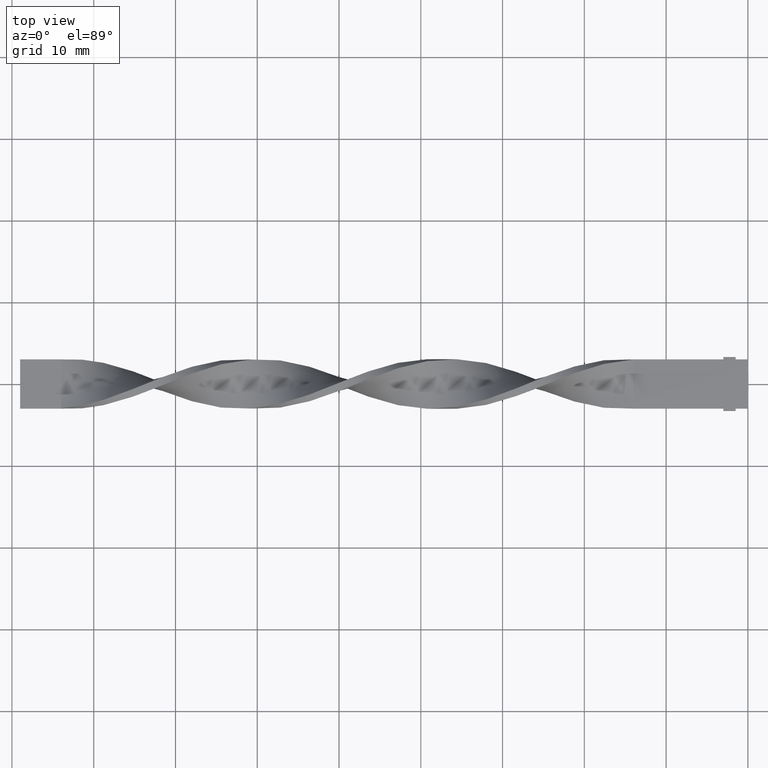
[diagram: clean part render]
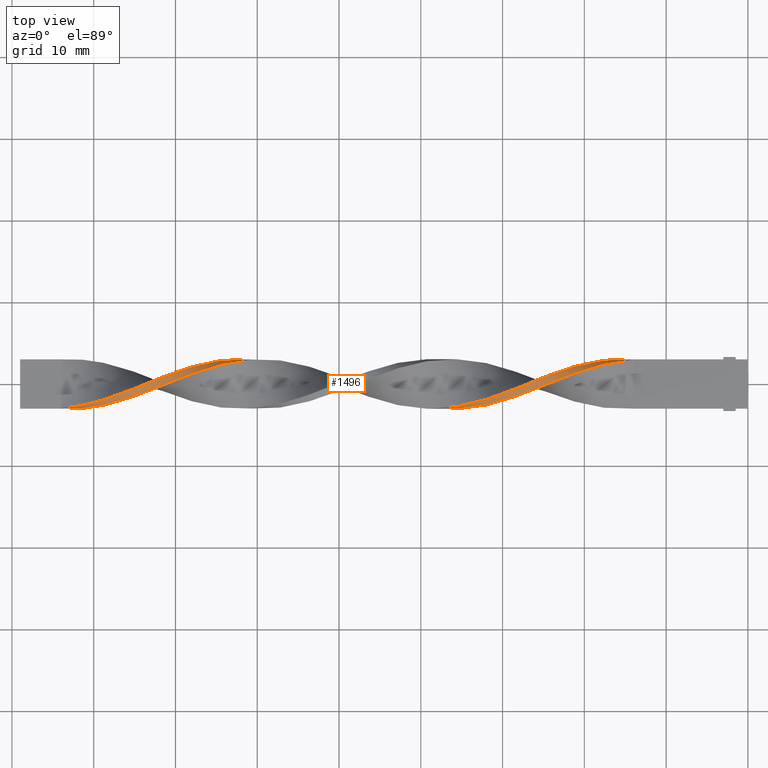
[diagram: same view with one face highlighted and labeled with its STEP entity id]
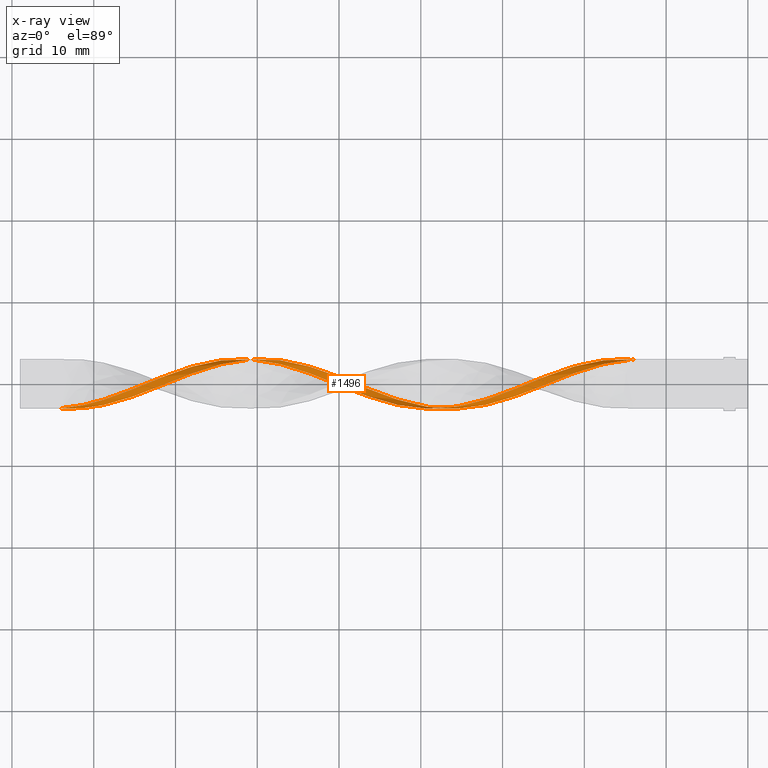
[diagram: x-ray of the same camera — body ghosted, the highlighted face saturated]
A machine part, top view. The second image highlights one B-rep face of the part: STEP entity #1496.
The next image is the same camera in x-ray: the body ghosted, the highlighted face saturated — about 0% of this face is hidden behind the body in this view.
In plain terms, the highlighted face is a freeform B-spline surface patch.
Its self-contained STEP definition (entity closure, byte-faithful):
#8 = CARTESIAN_POINT ( 'NONE',  ( -52.58974358974358410, 0.9584295337030710460, -2.909946448908425243 ) ) ;
#16 = B_SPLINE_CURVE_WITH_KNOTS ( 'NONE', 3,
 ( #1099, #101, #473, #1482 ),
 .UNSPECIFIED., .F., .F.,
 ( 4, 4 ),
 ( 0.000000000000000000, 1.000000000000000000 ),
 .UNSPECIFIED. ) ;
#21 = CARTESIAN_POINT ( 'NONE',  ( -70.53846153846153300, 1.212256617197150943, 2.813682533735952340 ) ) ;
#32 = CARTESIAN_POINT ( 'NONE',  ( -64.25641025641024839, 2.424006490937744562, 1.836897528957910142 ) ) ;
#34 = CARTESIAN_POINT ( 'NONE',  ( -14.89743589743589602, 2.939289008388868751, 0.8642659496667816077 ) ) ;
#37 = ORIENTED_EDGE ( 'NONE', *, *, #1327, .T. ) ;
#43 = CARTESIAN_POINT ( 'NONE',  ( -36.43589743589743790, -3.060710991611129472, -0.1357340503332171711 ) ) ;
#48 = CARTESIAN_POINT ( 'NONE',  ( -49.89743589743589069, -0.1347443962830601472, -3.038394962421822498 ) ) ;
#50 = CARTESIAN_POINT ( 'NONE',  ( -76.82051282051281760, -2.115686173140294724, 2.184919224315390540 ) ) ;
#52 = CARTESIAN_POINT ( 'NONE',  ( -23.87179487179487580, 0.2341835458667257397, 3.054755894246597769 ) ) ;
#56 = CARTESIAN_POINT ( 'NONE',  ( -69.64102564102564941, 1.531322782470314392, 2.627746284534975718 ) ) ;
#59 = CARTESIAN_POINT ( 'NONE',  ( -65.15384615384614619, 2.200966749995605376, 2.131225204431203224 ) ) ;
#64 = CARTESIAN_POINT ( 'NONE',  ( -34.64102564102564230, -2.647046231879883305, 1.542569853484617726 ) ) ;
#66 = CARTESIAN_POINT ( 'NONE',  ( -67.84615384615385381, 2.115686173140295168, 2.184919224315390540 ) ) ;
#70 = CARTESIAN_POINT ( 'NONE',  ( -49.00000000000000000, 0.5036723384328409825, -3.022034030597047671 ) ) ;
#73 = CARTESIAN_POINT ( 'NONE',  ( -37.33333333333332860, -2.999999999999999112, 0.5000000000000003331 ) ) ;
#74 = CARTESIAN_POINT ( 'NONE',  ( -30.15384615384615330, -2.115686173140294724, 2.184919224315390540 ) ) ;
#80 = CARTESIAN_POINT ( 'NONE',  ( -75.92307692307691980, -1.850388947743477397, 2.441810035334000428 ) ) ;
#83 = FACE_OUTER_BOUND ( 'NONE', #377, .T. ) ;
#85 = CARTESIAN_POINT ( 'NONE',  ( -48.10256410256410220, -0.8579644778149976281, -2.917858282166499340 ) ) ;
#88 = CARTESIAN_POINT ( 'NONE',  ( -80.41025641025640880, -2.888729662981512902, 0.9514415033047007864 ) ) ;
#95 = CARTESIAN_POINT ( 'NONE',  ( -34.64102564102564230, -2.647046231879883305, 1.542569853484617504 ) ) ;
#100 = CARTESIAN_POINT ( 'NONE',  ( -39.12820512820512420, -3.032483284421934044, -0.2324760841496460451 ) ) ;
#101 = CARTESIAN_POINT ( 'NONE',  ( -84.00000000000000000, -2.999999999999999112, -0.1666666666666663521 ) ) ;
#114 = CARTESIAN_POINT ( 'NONE',  ( -34.64102564102564230, -3.004255577232739061, 0.6006862186325132580 ) ) ;
#125 = CARTESIAN_POINT ( 'NONE',  ( -75.02564102564102200, -0.5963065397848987814, 2.982351171577511728 ) ) ;
#132 = CARTESIAN_POINT ( 'NONE',  ( -19.38461538461538325, 2.577093573633700174, 1.615112600636833928 ) ) ;
#140 = CARTESIAN_POINT ( 'NONE',  ( -75.92307692307693401, -1.850388947743477175, 2.441810035334000428 ) ) ;
#161 = CARTESIAN_POINT ( 'NONE',  ( -64.25641025641024839, 2.888729662981512902, 0.9514415033047003423 ) ) ;
#164 = CARTESIAN_POINT ( 'NONE',  ( -63.35897435897435770, 2.647046231879884193, 1.542569853484616615 ) ) ;
#165 = CARTESIAN_POINT ( 'NONE',  ( -20.28205128205128460, 1.626975080790205030, 2.596021493184667683 ) ) ;
#171 = CARTESIAN_POINT ( 'NONE',  ( -47.20512820512820440, -1.212256617197150721, -2.813682533735952340 ) ) ;
#172 = CARTESIAN_POINT ( 'NONE',  ( -52.58974358974359120, 1.850388947743476065, -2.441810035334000872 ) ) ;
#175 = VERTEX_POINT ( 'NONE', #1022 ) ;
#176 = CARTESIAN_POINT ( 'NONE',  ( -51.69230769230769340, 0.5963065397848990035, -2.982351171577511728 ) ) ;
#178 = CARTESIAN_POINT ( 'NONE',  ( -58.87179487179486870, 3.032483284421933600, -0.2324760841496498753 ) ) ;
#183 = CARTESIAN_POINT ( 'NONE',  ( -60.66666666666666430, 2.999999999999999112, -0.5000000000000000000 ) ) ;
#187 = CARTESIAN_POINT ( 'NONE',  ( -47.20512820512820440, -0.2341835458667255176, -3.054755894246597769 ) ) ;
#190 = CARTESIAN_POINT ( 'NONE',  ( -14.89743589743589602, 2.939289008388868751, 0.8642659496667817187 ) ) ;
#193 = CARTESIAN_POINT ( 'NONE',  ( -76.82051282051281760, -1.292702307246638371, 2.752983971046546685 ) ) ;
#197 = CARTESIAN_POINT ( 'NONE',  ( -75.02564102564102200, -1.531322782470313726, 2.627746284534976162 ) ) ;
#204 = CARTESIAN_POINT ( 'NONE',  ( -31.05128205128205465, -1.626975080790203920, 2.596021493184668572 ) ) ;
#210 = CARTESIAN_POINT ( 'NONE',  ( -62.46153846153845990, 3.032483284421934044, 0.2324760841496470720 ) ) ;
#220 = CARTESIAN_POINT ( 'NONE',  ( -38.23076923076922640, -3.060710991611129472, 0.1357340503332191972 ) ) ;
#224 = CARTESIAN_POINT ( 'NONE',  ( -49.00000000000000711, -0.5036723384328419817, -3.022034030597047671 ) ) ;
#229 = CARTESIAN_POINT ( 'NONE',  ( -84.00000000000000000, -2.999999999999999112, -0.4999999999999996669 ) ) ;
#231 = CARTESIAN_POINT ( 'NONE',  ( -22.97435897435897090, 1.531322782470314392, 2.627746284534975718 ) ) ;
#236 = CARTESIAN_POINT ( 'NONE',  ( -17.58974358974358765, 2.888729662981512902, 0.9514415033047003423 ) ) ;
#238 =( BOUNDED_SURFACE ( )  B_SPLINE_SURFACE ( 1, 2, ( 
 ( #683, #190, #950, #1174, #1315, #539, #549, #1438, #1454, #1575, #1464, #1542, #1048, #1305, #1559, #439, #314, #1193, #74, #569, #1110, #960, #1374, #114, #728, #1598, #997, #1233, #984, #362, #1004, #1390, #253, #731, #1097, #758, #488, #1506, #601, #1600, #480, #857, #976, #1235, #363, #1368, #386, #1136, #526, #644, #396, #1291, #1144, #1433, #889, #164, #32, #1396, #519, #299, #262, #279, #1018, #650, #1529, #416, #1536, #656, #914, #140, #50, #288, #663, #1043, #923, #1224, #622, #973, #229 ),
 ( #1511, #1486, #749, #1105, #236, #246, #132, #629, #1039, #915, #1423, #736, #1069, #441, #842, #1466, #1347, #552, #1550, #1184, #305, #808, #1308, #64, #959, #293, #73, #491, #100, #1473, #369, #619, #1118, #746, #1250, #357, #1345, #1092, #347, #224, #1229, #859, #730, #8, #1108, #738, #318, #1318, #688, #1197, #700, #582, #1079, #1340, #210, #1168, #161, #1429, #774, #885, #504, #995, #780, #21, #392, #1270, #402, #1411, #125, #874, #748, #1386, #754, #635, #1150, #1159, #1031, #1274, #406 ) ),
 .UNSPECIFIED., .F., .F., .F. ) 
 B_SPLINE_SURFACE_WITH_KNOTS ( ( 2, 2 ),
 ( 3, 2, 2, 2, 2, 2, 2, 2, 2, 2, 2, 2, 2, 2, 2, 2, 2, 2, 2, 2, 2, 2, 2, 2, 2, 2, 2, 2, 2, 2, 2, 2, 2, 2, 2, 2, 2, 2, 2, 3 ),
 ( 0.000000000000000000, 1.000000000000000000 ),
 ( 0.000000000000000000, 0.01923076923076923184, 0.03846153846153846367, 0.05769230769230769551, 0.07692307692307692735, 0.09615384615384615918, 0.1153846153846153910, 0.1346153846153846090, 0.1538461538461538547, 0.1730769230769230727, 0.1923076923076923184, 0.2115384615384615363, 0.2307692307692307820, 0.2500000000000000000, 0.2692307692307692180, 0.2884615384615384359, 0.3076923076923077094, 0.3269230769230769273, 0.3461538461538461453, 0.3653846153846153633, 0.3846153846153846367, 0.4038461538461538547, 0.4230769230769230727, 0.4423076923076922906, 0.4615384615384615641, 0.4807692307692307820, 0.5000000000000000000, 0.5192307692307692735, 0.5384615384615384359, 0.5576923076923077094, 0.5769230769230768718, 0.5961538461538461453, 0.6153846153846154188, 0.6346153846153845812, 0.6538461538461538547, 0.6730769230769231282, 0.6923076923076922906, 0.7115384615384615641, 0.7307692307692307265, 0.7500000000000000000 ),
 .UNSPECIFIED. ) 
 GEOMETRIC_REPRESENTATION_ITEM ( )  RATIONAL_B_SPLINE_SURFACE ( (
 ( 1.000000000000000000, 0.9927088740980539727, 1.000000000000000000, 0.9927088740980539727, 1.000000000000000000, 0.9927088740980539727, 1.000000000000000000, 0.9927088740980539727, 1.000000000000000000, 0.9927088740980539727, 1.000000000000000000, 0.9927088740980539727, 1.000000000000000000, 0.9927088740980539727, 1.000000000000000000, 0.9927088740980539727, 1.000000000000000000, 0.9927088740980539727, 1.000000000000000000, 0.9927088740980539727, 1.000000000000000000, 0.9927088740980539727, 1.000000000000000000, 0.9927088740980539727, 1.000000000000000000, 0.9927088740980539727, 1.000000000000000000, 0.9927088740980539727, 1.000000000000000000, 0.9927088740980539727, 1.000000000000000000, 0.9927088740980539727, 1.000000000000000000, 0.9927088740980539727, 1.000000000000000000, 0.9927088740980539727, 1.000000000000000000, 0.9927088740980539727, 1.000000000000000000, 0.9927088740980539727, 1.000000000000000000, 0.9927088740980539727, 1.000000000000000000, 0.9927088740980539727, 1.000000000000000000, 0.9927088740980539727, 1.000000000000000000, 0.9927088740980539727, 1.000000000000000000, 0.9927088740980539727, 1.000000000000000000, 0.9927088740980539727, 1.000000000000000000, 0.9927088740980539727, 1.000000000000000000, 0.9927088740980539727, 1.000000000000000000, 0.9927088740980539727, 1.000000000000000000, 0.9927088740980539727, 1.000000000000000000, 0.9927088740980539727, 1.000000000000000000, 0.9927088740980539727, 1.000000000000000000, 0.9927088740980539727, 1.000000000000000000, 0.9927088740980539727, 1.000000000000000000, 0.9927088740980539727, 1.000000000000000000, 0.9927088740980539727, 1.000000000000000000, 0.9927088740980539727, 1.000000000000000000, 0.9927088740980539727, 1.000000000000000000, 0.9927088740980539727, 1.000000000000000000),
 ( 1.000000000000000000, 0.9927088740980539727, 1.000000000000000000, 0.9927088740980539727, 1.000000000000000000, 0.9927088740980539727, 1.000000000000000000, 0.9927088740980539727, 1.000000000000000000, 0.9927088740980539727, 1.000000000000000000, 0.9927088740980539727, 1.000000000000000000, 0.9927088740980539727, 1.000000000000000000, 0.9927088740980539727, 1.000000000000000000, 0.9927088740980539727, 1.000000000000000000, 0.9927088740980539727, 1.000000000000000000, 0.9927088740980539727, 1.000000000000000000, 0.9927088740980539727, 1.000000000000000000, 0.9927088740980539727, 1.000000000000000000, 0.9927088740980539727, 1.000000000000000000, 0.9927088740980539727, 1.000000000000000000, 0.9927088740980539727, 1.000000000000000000, 0.9927088740980539727, 1.000000000000000000, 0.9927088740980539727, 1.000000000000000000, 0.9927088740980539727, 1.000000000000000000, 0.9927088740980539727, 1.000000000000000000, 0.9927088740980539727, 1.000000000000000000, 0.9927088740980539727, 1.000000000000000000, 0.9927088740980539727, 1.000000000000000000, 0.9927088740980539727, 1.000000000000000000, 0.9927088740980539727, 1.000000000000000000, 0.9927088740980539727, 1.000000000000000000, 0.9927088740980539727, 1.000000000000000000, 0.9927088740980539727, 1.000000000000000000, 0.9927088740980539727, 1.000000000000000000, 0.9927088740980539727, 1.000000000000000000, 0.9927088740980539727, 1.000000000000000000, 0.9927088740980539727, 1.000000000000000000, 0.9927088740980539727, 1.000000000000000000, 0.9927088740980539727, 1.000000000000000000, 0.9927088740980539727, 1.000000000000000000, 0.9927088740980539727, 1.000000000000000000, 0.9927088740980539727, 1.000000000000000000, 0.9927088740980539727, 1.000000000000000000, 0.9927088740980539727, 1.000000000000000000) ) ) 
 REPRESENTATION_ITEM ( '' )  SURFACE ( )  );
#242 = CARTESIAN_POINT ( 'NONE',  ( -19.38461538461538325, 1.913970915392905425, 2.363623348807935454 ) ) ;
#246 = CARTESIAN_POINT ( 'NONE',  ( -18.48717948717948545, 2.773203748730287632, 1.302196787976887649 ) ) ;
#253 = CARTESIAN_POINT ( 'NONE',  ( -42.71794871794872250, -1.913970915392905869, -2.363623348807935454 ) ) ;
#262 = CARTESIAN_POINT ( 'NONE',  ( -67.84615384615385381, 1.292702307246639037, 2.752983971046546685 ) ) ;
#279 = CARTESIAN_POINT ( 'NONE',  ( -68.74358974358973740, 0.9584295337030730444, 2.909946448908424799 ) ) ;
#281 = CARTESIAN_POINT ( 'NONE',  ( -25.66666666666666785, -0.5036723384328412045, 3.022034030597047671 ) ) ;
#286 = CARTESIAN_POINT ( 'NONE',  ( -63.35897435897436480, 3.004255577232739061, 0.6006862186325124808 ) ) ;
#288 = CARTESIAN_POINT ( 'NONE',  ( -77.71794871794872961, -2.380983398537112272, 1.928028413296781984 ) ) ;
#290 = CARTESIAN_POINT ( 'NONE',  ( -28.35897435897435770, -1.531322782470313726, 2.627746284534976162 ) ) ;
#293 = CARTESIAN_POINT ( 'NONE',  ( -36.43589743589743790, -2.939289008388868751, 0.8642659496667827179 ) ) ;
#296 = CARTESIAN_POINT ( 'NONE',  ( -81.30769230769232081, -2.647046231879883305, 1.542569853484617504 ) ) ;
#299 = CARTESIAN_POINT ( 'NONE',  ( -66.94871794871794179, 1.626975080790204808, 2.596021493184667683 ) ) ;
#301 = CARTESIAN_POINT ( 'NONE',  ( -50.79487179487178850, 1.212256617197149611, -2.813682533735953228 ) ) ;
#304 = VERTEX_POINT ( 'NONE', #559 ) ;
#305 = CARTESIAN_POINT ( 'NONE',  ( -31.94871794871794535, -1.913970915392904315, 2.363623348807935898 ) ) ;
#310 = CARTESIAN_POINT ( 'NONE',  ( -41.82051282051281760, -2.200966749995605820, -2.131225204431203224 ) ) ;
#314 = CARTESIAN_POINT ( 'NONE',  ( -28.35897435897435770, -1.531322782470313726, 2.627746284534976162 ) ) ;
#316 = CARTESIAN_POINT ( 'NONE',  ( -57.97435897435897090, 2.647046231879883305, -1.542569853484617948 ) ) ;
#318 = CARTESIAN_POINT ( 'NONE',  ( -55.28205128205128460, 1.913970915392903871, -2.363623348807935898 ) ) ;
#320 = CARTESIAN_POINT ( 'NONE',  ( -45.41025641025640880, -0.9584295337030747097, -2.909946448908424355 ) ) ;
#326 = CARTESIAN_POINT ( 'NONE',  ( -66.94871794871795601, 2.380983398537113160, 1.928028413296780874 ) ) ;
#327 = DIRECTION ( 'NONE',  ( -0.000000000000000000, -0.000000000000000000, -1.000000000000000000 ) ) ;
#330 = CARTESIAN_POINT ( 'NONE',  ( -14.89743589743589602, 3.060710991611129472, -0.1357340503332185033 ) ) ;
#337 = CARTESIAN_POINT ( 'NONE',  ( -39.12820512820512420, -3.032483284421934044, -0.2324760841496460451 ) ) ;
#347 = CARTESIAN_POINT ( 'NONE',  ( -48.10256410256410220, -0.8579644778149976281, -2.917858282166499340 ) ) ;
#351 = ORIENTED_EDGE ( 'NONE', *, *, #384, .F. ) ;
#357 = CARTESIAN_POINT ( 'NONE',  ( -45.41025641025640880, -1.850388947743478729, -2.441810035333998652 ) ) ;
#362 = CARTESIAN_POINT ( 'NONE',  ( -40.02564102564102200, -2.647046231879884637, -1.542569853484615505 ) ) ;
#363 = CARTESIAN_POINT ( 'NONE',  ( -53.48717948717948900, 2.115686173140294724, -2.184919224315391428 ) ) ;
#369 = CARTESIAN_POINT ( 'NONE',  ( -40.92307692307691980, -2.888729662981512902, -0.9514415033047001202 ) ) ;
#377 = EDGE_LOOP ( 'NONE', ( #37, #533, #865, #351 ) ) ;
#384 = EDGE_CURVE ( 'NONE', #414, #175, #1246, .T. ) ;
#386 = CARTESIAN_POINT ( 'NONE',  ( -55.28205128205128460, 2.577093573633699286, -1.615112600636835483 ) ) ;
#392 = CARTESIAN_POINT ( 'NONE',  ( -71.43589743589743080, 0.8579644778149966289, 2.917858282166499340 ) ) ;
#396 = CARTESIAN_POINT ( 'NONE',  ( -58.87179487179486870, 3.032483284421933600, -0.2324760841496498753 ) ) ;
#402 = CARTESIAN_POINT ( 'NONE',  ( -73.23076923076924061, 0.1347443962830584541, 3.038394962421822498 ) ) ;
#406 = CARTESIAN_POINT ( 'NONE',  ( -84.00000000000000000, -2.999999999999999112, 0.5000000000000003331 ) ) ;
#409 = CARTESIAN_POINT ( 'NONE',  ( -57.07692307692307310, 2.888729662981512458, -0.9514415033047024517 ) ) ;
#414 = VERTEX_POINT ( 'NONE', #600 ) ;
#416 = CARTESIAN_POINT ( 'NONE',  ( -72.33333333333332860, -0.5036723384328412045, 3.022034030597047671 ) ) ;
#418 = CARTESIAN_POINT ( 'NONE',  ( -57.97435897435897090, 3.004255577232739061, -0.6006862186325138131 ) ) ;
#423 = CARTESIAN_POINT ( 'NONE',  ( -77.71794871794874382, -1.626975080790203920, 2.596021493184668572 ) ) ;
#426 = CARTESIAN_POINT ( 'NONE',  ( -27.46153846153846345, -1.212256617197150721, 2.813682533735952340 ) ) ;
#431 = CARTESIAN_POINT ( 'NONE',  ( -50.79487179487178850, 0.2341835458667242131, -3.054755894246597769 ) ) ;
#436 = CARTESIAN_POINT ( 'NONE',  ( -67.84615384615385381, 1.292702307246639037, 2.752983971046546685 ) ) ;
#439 = CARTESIAN_POINT ( 'NONE',  ( -27.46153846153846345, -1.212256617197150721, 2.813682533735952340 ) ) ;
#441 = CARTESIAN_POINT ( 'NONE',  ( -25.66666666666666785, 0.5036723384328416486, 3.022034030597047671 ) ) ;
#442 = CARTESIAN_POINT ( 'NONE',  ( -64.25641025641024839, 2.888729662981512902, 0.9514415033047003423 ) ) ;
#445 = CARTESIAN_POINT ( 'NONE',  ( -68.74358974358973740, 0.9584295337030730444, 2.909946448908425243 ) ) ;
#452 = CARTESIAN_POINT ( 'NONE',  ( -19.38461538461538325, 2.577093573633700174, 1.615112600636833928 ) ) ;
#458 = CARTESIAN_POINT ( 'NONE',  ( -58.87179487179486870, 2.793167620134375362, -1.203417901575701610 ) ) ;
#463 = CARTESIAN_POINT ( 'NONE',  ( -28.35897435897435770, -0.5963065397848987814, 2.982351171577511728 ) ) ;
#470 = CARTESIAN_POINT ( 'NONE',  ( -32.84615384615384670, -2.200966749995605376, 2.131225204431203668 ) ) ;
#473 = CARTESIAN_POINT ( 'NONE',  ( -84.00000000000000000, -2.999999999999999112, 0.1666666666666670182 ) ) ;
#479 = CARTESIAN_POINT ( 'NONE',  ( -18.48717948717948545, 2.773203748730287632, 1.302196787976887871 ) ) ;
#480 = CARTESIAN_POINT ( 'NONE',  ( -49.89743589743589069, 0.8579644778149938533, -2.917858282166499784 ) ) ;
#485 = EDGE_CURVE ( 'NONE', #1049, #304, #1577, .T. ) ;
#488 = CARTESIAN_POINT ( 'NONE',  ( -46.30769230769230660, -0.5963065397849001137, -2.982351171577511284 ) ) ;
#491 = CARTESIAN_POINT ( 'NONE',  ( -38.23076923076922640, -3.060710991611129472, 0.1357340503332191695 ) ) ;
#504 = CARTESIAN_POINT ( 'NONE',  ( -67.84615384615385381, 2.115686173140295168, 2.184919224315390540 ) ) ;
#519 = CARTESIAN_POINT ( 'NONE',  ( -66.05128205128204399, 1.913970915392905425, 2.363623348807935454 ) ) ;
#526 = CARTESIAN_POINT ( 'NONE',  ( -57.07692307692307310, 2.888729662981512458, -0.9514415033047024517 ) ) ;
#528 = CARTESIAN_POINT ( 'NONE',  ( -15.79487179487179205, 2.793167620134376694, 1.203417901575699167 ) ) ;
#533 = ORIENTED_EDGE ( 'NONE', *, *, #485, .T. ) ;
#536 = CARTESIAN_POINT ( 'NONE',  ( -38.23076923076922640, -2.939289008388868751, -0.8642659496667810526 ) ) ;
#539 = CARTESIAN_POINT ( 'NONE',  ( -18.48717948717948545, 2.200966749995605376, 2.131225204431203224 ) ) ;
#542 = CARTESIAN_POINT ( 'NONE',  ( -65.15384615384614619, 2.773203748730287632, 1.302196787976887871 ) ) ;
#545 = CARTESIAN_POINT ( 'NONE',  ( -21.17948717948717885, 1.292702307246639037, 2.752983971046546685 ) ) ;
#549 = CARTESIAN_POINT ( 'NONE',  ( -19.38461538461538325, 1.913970915392905425, 2.363623348807935454 ) ) ;
#552 = CARTESIAN_POINT ( 'NONE',  ( -29.25641025641025905, -0.9584295337030727113, 2.909946448908424799 ) ) ;
#553 = CARTESIAN_POINT ( 'NONE',  ( -73.23076923076924061, 0.1347443962830584541, 3.038394962421822498 ) ) ;
#556 = CARTESIAN_POINT ( 'NONE',  ( -51.69230769230769340, 1.531322782470313726, -2.627746284534976162 ) ) ;
#559 = CARTESIAN_POINT ( 'NONE',  ( -84.00000000000000000, -2.999999999999999112, 0.5000000000000003331 ) ) ;
#566 = CARTESIAN_POINT ( 'NONE',  ( -62.46153846153845990, 2.793167620134376694, 1.203417901575699167 ) ) ;
#569 = CARTESIAN_POINT ( 'NONE',  ( -31.05128205128205821, -2.380983398537112272, 1.928028413296781984 ) ) ;
#571 = CARTESIAN_POINT ( 'NONE',  ( -62.46153846153845990, 3.032483284421934044, 0.2324760841496470720 ) ) ;
#575 = CARTESIAN_POINT ( 'NONE',  ( -35.53846153846153300, -3.032483284421934044, 0.2324760841496482100 ) ) ;
#580 = CARTESIAN_POINT ( 'NONE',  ( -52.58974358974359120, 0.9584295337030711570, -2.909946448908425687 ) ) ;
#582 = CARTESIAN_POINT ( 'NONE',  ( -59.76923076923077360, 2.939289008388868307, -0.8642659496667831620 ) ) ;
#584 = CARTESIAN_POINT ( 'NONE',  ( -26.56410256410256210, 0.1347443962830584541, 3.038394962421822498 ) ) ;
#600 = CARTESIAN_POINT ( 'NONE',  ( -13.99999999999999822, 2.999999999999999112, 0.5000000000000000000 ) ) ;
#601 = CARTESIAN_POINT ( 'NONE',  ( -48.10256410256410220, 0.1347443962830564002, -3.038394962421822942 ) ) ;
#608 = CARTESIAN_POINT ( 'NONE',  ( -79.51282051282051100, -2.773203748730287632, 1.302196787976888093 ) ) ;
#619 = CARTESIAN_POINT ( 'NONE',  ( -41.82051282051281760, -2.773203748730288076, -1.302196787976887205 ) ) ;
#622 = CARTESIAN_POINT ( 'NONE',  ( -82.20512820512820440, -3.032483284421934044, 0.2324760841496482100 ) ) ;
#629 = CARTESIAN_POINT ( 'NONE',  ( -20.28205128205128460, 2.380983398537113160, 1.928028413296780874 ) ) ;
#635 = CARTESIAN_POINT ( 'NONE',  ( -79.51282051282051100, -2.200966749995605376, 2.131225204431203668 ) ) ;
#644 = CARTESIAN_POINT ( 'NONE',  ( -57.97435897435897090, 3.004255577232739061, -0.6006862186325138131 ) ) ;
#650 = CARTESIAN_POINT ( 'NONE',  ( -70.53846153846153300, 0.2341835458667257397, 3.054755894246597769 ) ) ;
#656 = CARTESIAN_POINT ( 'NONE',  ( -74.12820512820512420, -1.212256617197150721, 2.813682533735952340 ) ) ;
#658 = CARTESIAN_POINT ( 'NONE',  ( -33.74358974358974450, -2.888729662981512902, 0.9514415033047007864 ) ) ;
#662 = CARTESIAN_POINT ( 'NONE',  ( -40.92307692307691980, -2.888729662981512902, -0.9514415033047001202 ) ) ;
#663 = CARTESIAN_POINT ( 'NONE',  ( -78.61538461538461320, -2.577093573633699730, 1.615112600636835261 ) ) ;
#665 = CARTESIAN_POINT ( 'NONE',  ( -61.56410256410256920, 2.939289008388868751, 0.8642659496667816077 ) ) ;
#671 = CARTESIAN_POINT ( 'NONE',  ( -53.48717948717948900, 1.292702307246637927, -2.752983971046546685 ) ) ;
#672 = LINE ( 'NONE', #1457, #1461 ) ;
#674 = CARTESIAN_POINT ( 'NONE',  ( -37.33333333333332860, -2.999999999999999112, -0.4999999999999996669 ) ) ;
#681 = CARTESIAN_POINT ( 'NONE',  ( -40.92307692307691980, -2.424006490937744562, -1.836897528957909920 ) ) ;
#683 = CARTESIAN_POINT ( 'NONE',  ( -13.99999999999999822, 2.999999999999999112, 0.5000000000000000000 ) ) ;
#686 = CARTESIAN_POINT ( 'NONE',  ( -83.10256410256410220, -2.939289008388868751, 0.8642659496667828289 ) ) ;
#688 = CARTESIAN_POINT ( 'NONE',  ( -57.07692307692307310, 2.424006490937743230, -1.836897528957911918 ) ) ;
#690 = CARTESIAN_POINT ( 'NONE',  ( -31.05128205128205465, -2.380983398537112272, 1.928028413296781984 ) ) ;
#700 = CARTESIAN_POINT ( 'NONE',  ( -58.87179487179486870, 2.793167620134375362, -1.203417901575701610 ) ) ;
#708 = CARTESIAN_POINT ( 'NONE',  ( -20.28205128205128460, 2.380983398537113160, 1.928028413296780874 ) ) ;
#718 = CARTESIAN_POINT ( 'NONE',  ( -81.30769230769232081, -3.004255577232739061, 0.6006862186325134800 ) ) ;
#728 = CARTESIAN_POINT ( 'NONE',  ( -35.53846153846153300, -3.032483284421934044, 0.2324760841496482100 ) ) ;
#729 = CARTESIAN_POINT ( 'NONE',  ( -25.66666666666666785, 0.5036723384328416486, 3.022034030597047671 ) ) ;
#730 = CARTESIAN_POINT ( 'NONE',  ( -51.69230769230769340, 0.5963065397848990035, -2.982351171577511728 ) ) ;
#731 = CARTESIAN_POINT ( 'NONE',  ( -43.61538461538461320, -1.626975080790205697, -2.596021493184667239 ) ) ;
#736 = CARTESIAN_POINT ( 'NONE',  ( -23.87179487179487580, 1.212256617197150943, 2.813682533735952340 ) ) ;
#738 = CARTESIAN_POINT ( 'NONE',  ( -54.38461538461538680, 1.626975080790202366, -2.596021493184669016 ) ) ;
#746 = CARTESIAN_POINT ( 'NONE',  ( -43.61538461538461320, -2.380983398537113604, -1.928028413296780430 ) ) ;
#748 = CARTESIAN_POINT ( 'NONE',  ( -76.82051282051281760, -1.292702307246638371, 2.752983971046546685 ) ) ;
#749 = CARTESIAN_POINT ( 'NONE',  ( -15.79487179487179205, 3.032483284421934044, 0.2324760841496470720 ) ) ;
#754 = CARTESIAN_POINT ( 'NONE',  ( -78.61538461538461320, -1.913970915392904315, 2.363623348807935898 ) ) ;
#758 = CARTESIAN_POINT ( 'NONE',  ( -45.41025641025640880, -0.9584295337030748207, -2.909946448908423910 ) ) ;
#774 = CARTESIAN_POINT ( 'NONE',  ( -66.05128205128204399, 2.577093573633700174, 1.615112600636833928 ) ) ;
#780 = CARTESIAN_POINT ( 'NONE',  ( -69.64102564102564941, 1.531322782470314392, 2.627746284534975718 ) ) ;
#783 = CARTESIAN_POINT ( 'NONE',  ( -49.89743589743589069, 0.8579644778149938533, -2.917858282166499784 ) ) ;
#788 = CARTESIAN_POINT ( 'NONE',  ( -66.05128205128204399, 2.577093573633700174, 1.615112600636833928 ) ) ;
#793 = CARTESIAN_POINT ( 'NONE',  ( -60.66666666666666430, 2.999999999999999112, 0.5000000000000000000 ) ) ;
#799 = CARTESIAN_POINT ( 'NONE',  ( -84.00000000000000000, -2.999999999999999112, 0.5000000000000003331 ) ) ;
#802 = CARTESIAN_POINT ( 'NONE',  ( -53.48717948717948900, 2.115686173140294724, -2.184919224315391428 ) ) ;
#808 = CARTESIAN_POINT ( 'NONE',  ( -32.84615384615384670, -2.200966749995605376, 2.131225204431203668 ) ) ;
#811 = CARTESIAN_POINT ( 'NONE',  ( -70.53846153846153300, 0.2341835458667257397, 3.054755894246597769 ) ) ;
#817 = CARTESIAN_POINT ( 'NONE',  ( -59.76923076923076650, 2.939289008388868307, -0.8642659496667832730 ) ) ;
#820 = CARTESIAN_POINT ( 'NONE',  ( -24.76923076923076650, -0.1347443962830574271, 3.038394962421822942 ) ) ;
#842 = CARTESIAN_POINT ( 'NONE',  ( -26.56410256410256210, 0.1347443962830584541, 3.038394962421822498 ) ) ;
#846 = CARTESIAN_POINT ( 'NONE',  ( -36.43589743589743790, -2.939289008388868751, 0.8642659496667828289 ) ) ;
#856 = CARTESIAN_POINT ( 'NONE',  ( -23.87179487179487580, 1.212256617197150943, 2.813682533735952340 ) ) ;
#857 = CARTESIAN_POINT ( 'NONE',  ( -50.79487179487178850, 1.212256617197149611, -2.813682533735953228 ) ) ;
#859 = CARTESIAN_POINT ( 'NONE',  ( -50.79487179487178850, 0.2341835458667242409, -3.054755894246597769 ) ) ;
#865 = ORIENTED_EDGE ( 'NONE', *, *, #1563, .F. ) ;
#874 = CARTESIAN_POINT ( 'NONE',  ( -75.92307692307693401, -0.9584295337030727113, 2.909946448908424799 ) ) ;
#885 = CARTESIAN_POINT ( 'NONE',  ( -66.94871794871794179, 2.380983398537113160, 1.928028413296780874 ) ) ;
#889 = CARTESIAN_POINT ( 'NONE',  ( -62.46153846153845990, 2.793167620134376694, 1.203417901575699167 ) ) ;
#907 = CARTESIAN_POINT ( 'NONE',  ( -42.71794871794872250, -1.913970915392905869, -2.363623348807935454 ) ) ;
#914 = CARTESIAN_POINT ( 'NONE',  ( -75.02564102564102200, -1.531322782470313726, 2.627746284534976162 ) ) ;
#915 = CARTESIAN_POINT ( 'NONE',  ( -22.07692307692308376, 1.850388947743477397, 2.441810035334000428 ) ) ;
#917 = CARTESIAN_POINT ( 'NONE',  ( -59.76923076923076650, 3.060710991611129916, 0.1357340503332168102 ) ) ;
#921 = CARTESIAN_POINT ( 'NONE',  ( -43.61538461538461320, -2.380983398537114049, -1.928028413296780430 ) ) ;
#923 = CARTESIAN_POINT ( 'NONE',  ( -80.41025641025640880, -2.888729662981512902, 0.9514415033047007864 ) ) ;
#925 = CARTESIAN_POINT ( 'NONE',  ( -43.61538461538461320, -1.626975080790205919, -2.596021493184667239 ) ) ;
#930 = CARTESIAN_POINT ( 'NONE',  ( -49.00000000000000000, -0.5036723384328419817, -3.022034030597047671 ) ) ;
#933 = CARTESIAN_POINT ( 'NONE',  ( -22.97435897435897090, 0.5963065397848997806, 2.982351171577511284 ) ) ;
#940 = CARTESIAN_POINT ( 'NONE',  ( -69.64102564102564941, 0.5963065397848997806, 2.982351171577511284 ) ) ;
#944 = CARTESIAN_POINT ( 'NONE',  ( -46.30769230769230660, -1.531322782470314836, -2.627746284534975718 ) ) ;
#950 = CARTESIAN_POINT ( 'NONE',  ( -15.79487179487179205, 2.793167620134376694, 1.203417901575699167 ) ) ;
#956 = CARTESIAN_POINT ( 'NONE',  ( -33.74358974358974450, -2.424006490937744562, 1.836897528957910586 ) ) ;
#959 = CARTESIAN_POINT ( 'NONE',  ( -35.53846153846153300, -2.793167620134375806, 1.203417901575700055 ) ) ;
#960 = CARTESIAN_POINT ( 'NONE',  ( -32.84615384615384670, -2.773203748730287632, 1.302196787976887871 ) ) ;
#967 = CARTESIAN_POINT ( 'NONE',  ( -13.99999999999999822, 2.999999999999999112, -0.5000000000000000000 ) ) ;
#973 = CARTESIAN_POINT ( 'NONE',  ( -83.10256410256410220, -3.060710991611129472, -0.1357340503332171988 ) ) ;
#975 = CARTESIAN_POINT ( 'NONE',  ( -27.46153846153846345, -0.2341835458667254066, 3.054755894246597769 ) ) ;
#976 = CARTESIAN_POINT ( 'NONE',  ( -51.69230769230769340, 1.531322782470313726, -2.627746284534976162 ) ) ;
#984 = CARTESIAN_POINT ( 'NONE',  ( -39.12820512820512420, -2.793167620134376694, -1.203417901575698279 ) ) ;
#995 = CARTESIAN_POINT ( 'NONE',  ( -68.74358974358973740, 1.850388947743477397, 2.441810035334000428 ) ) ;
#997 = CARTESIAN_POINT ( 'NONE',  ( -37.33333333333332860, -2.999999999999999112, -0.4999999999999996669 ) ) ;
#1004 = CARTESIAN_POINT ( 'NONE',  ( -40.92307692307691980, -2.424006490937744562, -1.836897528957909920 ) ) ;
#1018 = CARTESIAN_POINT ( 'NONE',  ( -69.64102564102564941, 0.5963065397848997806, 2.982351171577511284 ) ) ;
#1022 = CARTESIAN_POINT ( 'NONE',  ( -84.00000000000000000, -2.999999999999999112, -0.4999999999999996669 ) ) ;
#1027 = CARTESIAN_POINT ( 'NONE',  ( -16.69230769230769340, 2.647046231879884193, 1.542569853484616615 ) ) ;
#1031 = CARTESIAN_POINT ( 'NONE',  ( -82.20512820512820440, -2.793167620134375806, 1.203417901575700055 ) ) ;
#1034 = CARTESIAN_POINT ( 'NONE',  ( -40.02564102564102200, -2.647046231879884637, -1.542569853484615505 ) ) ;
#1039 = CARTESIAN_POINT ( 'NONE',  ( -21.17948717948717885, 2.115686173140295168, 2.184919224315390540 ) ) ;
#1041 = CARTESIAN_POINT ( 'NONE',  ( -68.74358974358973740, 1.850388947743477619, 2.441810035334000428 ) ) ;
#1043 = CARTESIAN_POINT ( 'NONE',  ( -79.51282051282051100, -2.773203748730287632, 1.302196787976887871 ) ) ;
#1045 = CARTESIAN_POINT ( 'NONE',  ( -22.07692307692308020, 0.9584295337030730444, 2.909946448908425243 ) ) ;
#1048 = CARTESIAN_POINT ( 'NONE',  ( -24.76923076923076650, -0.1347443962830574271, 3.038394962421822942 ) ) ;
#1049 = VERTEX_POINT ( 'NONE', #1512 ) ;
#1051 = CARTESIAN_POINT ( 'NONE',  ( -74.12820512820510999, -0.2341835458667254066, 3.054755894246597769 ) ) ;
#1054 = CARTESIAN_POINT ( 'NONE',  ( -66.05128205128204399, 1.913970915392905425, 2.363623348807935454 ) ) ;
#1065 = CARTESIAN_POINT ( 'NONE',  ( -55.28205128205128460, 2.577093573633699286, -1.615112600636835483 ) ) ;
#1069 = CARTESIAN_POINT ( 'NONE',  ( -24.76923076923076650, 0.8579644778149966289, 2.917858282166499340 ) ) ;
#1073 = CARTESIAN_POINT ( 'NONE',  ( -44.51282051282051100, -1.292702307246639037, -2.752983971046546685 ) ) ;
#1078 = CARTESIAN_POINT ( 'NONE',  ( -54.38461538461538680, 1.626975080790202366, -2.596021493184669016 ) ) ;
#1079 = CARTESIAN_POINT ( 'NONE',  ( -60.66666666666666430, 2.999999999999999112, -0.5000000000000000000 ) ) ;
#1081 = CARTESIAN_POINT ( 'NONE',  ( -31.94871794871794535, -1.913970915392904315, 2.363623348807935898 ) ) ;
#1089 = CARTESIAN_POINT ( 'NONE',  ( -84.00000000000000000, -2.999999999999999112, -0.4999999999999996669 ) ) ;
#1092 = CARTESIAN_POINT ( 'NONE',  ( -47.20512820512820440, -1.212256617197150721, -2.813682533735952340 ) ) ;
#1097 = CARTESIAN_POINT ( 'NONE',  ( -44.51282051282051100, -1.292702307246639037, -2.752983971046546685 ) ) ;
#1099 = CARTESIAN_POINT ( 'NONE',  ( -84.00000000000000000, -2.999999999999999112, -0.4999999999999996669 ) ) ;
#1105 = CARTESIAN_POINT ( 'NONE',  ( -16.69230769230769695, 3.004255577232739061, 0.6006862186325124808 ) ) ;
#1107 = CARTESIAN_POINT ( 'NONE',  ( -77.71794871794874382, -2.380983398537112272, 1.928028413296781984 ) ) ;
#1108 = CARTESIAN_POINT ( 'NONE',  ( -53.48717948717948900, 1.292702307246637927, -2.752983971046546685 ) ) ;
#1110 = CARTESIAN_POINT ( 'NONE',  ( -31.94871794871794535, -2.577093573633699730, 1.615112600636835261 ) ) ;
#1118 = CARTESIAN_POINT ( 'NONE',  ( -42.71794871794872250, -2.577093573633700618, -1.615112600636833928 ) ) ;
#1136 = CARTESIAN_POINT ( 'NONE',  ( -56.17948717948717530, 2.773203748730287632, -1.302196787976888315 ) ) ;
#1144 = CARTESIAN_POINT ( 'NONE',  ( -60.66666666666666430, 2.999999999999999112, 0.5000000000000000000 ) ) ;
#1150 = CARTESIAN_POINT ( 'NONE',  ( -80.41025641025640880, -2.424006490937744562, 1.836897528957910586 ) ) ;
#1159 = CARTESIAN_POINT ( 'NONE',  ( -81.30769230769233502, -2.647046231879883305, 1.542569853484617726 ) ) ;
#1164 = CARTESIAN_POINT ( 'NONE',  ( -29.25641025641025905, -1.850388947743477397, 2.441810035334000428 ) ) ;
#1168 = CARTESIAN_POINT ( 'NONE',  ( -63.35897435897435770, 3.004255577232739061, 0.6006862186325124808 ) ) ;
#1169 = CARTESIAN_POINT ( 'NONE',  ( -42.71794871794872250, -2.577093573633700618, -1.615112600636833928 ) ) ;
#1171 = CARTESIAN_POINT ( 'NONE',  ( -39.12820512820512420, -2.793167620134376694, -1.203417901575698279 ) ) ;
#1174 = CARTESIAN_POINT ( 'NONE',  ( -16.69230769230769695, 2.647046231879884193, 1.542569853484616615 ) ) ;
#1176 = CARTESIAN_POINT ( 'NONE',  ( -55.28205128205128460, 1.913970915392903871, -2.363623348807935898 ) ) ;
#1179 = CARTESIAN_POINT ( 'NONE',  ( -64.25641025641024839, 2.424006490937744562, 1.836897528957910142 ) ) ;
#1184 = CARTESIAN_POINT ( 'NONE',  ( -31.05128205128205821, -1.626975080790203920, 2.596021493184668572 ) ) ;
#1185 = CARTESIAN_POINT ( 'NONE',  ( -44.51282051282051100, -2.115686173140295168, -2.184919224315390540 ) ) ;
#1189 = CARTESIAN_POINT ( 'NONE',  ( -46.30769230769230660, -0.5963065397849001137, -2.982351171577511284 ) ) ;
#1193 = CARTESIAN_POINT ( 'NONE',  ( -29.25641025641025905, -1.850388947743477175, 2.441810035334000428 ) ) ;
#1197 = CARTESIAN_POINT ( 'NONE',  ( -57.97435897435897090, 2.647046231879883305, -1.542569853484618170 ) ) ;
#1199 = CARTESIAN_POINT ( 'NONE',  ( -63.35897435897436480, 2.647046231879884193, 1.542569853484616615 ) ) ;
#1208 = CARTESIAN_POINT ( 'NONE',  ( -16.69230769230769340, 3.004255577232739061, 0.6006862186325124808 ) ) ;
#1214 = CARTESIAN_POINT ( 'NONE',  ( -24.76923076923076650, 0.8579644778149966289, 2.917858282166499340 ) ) ;
#1224 = CARTESIAN_POINT ( 'NONE',  ( -81.30769230769233502, -3.004255577232739061, 0.6006862186325132580 ) ) ;
#1226 = CARTESIAN_POINT ( 'NONE',  ( -83.10256410256410220, -3.060710991611129472, -0.1357340503332171711 ) ) ;
#1229 = CARTESIAN_POINT ( 'NONE',  ( -49.89743589743589069, -0.1347443962830601472, -3.038394962421822498 ) ) ;
#1233 = CARTESIAN_POINT ( 'NONE',  ( -38.23076923076922640, -2.939289008388868751, -0.8642659496667810526 ) ) ;
#1234 = CARTESIAN_POINT ( 'NONE',  ( -40.02564102564102200, -3.004255577232739505, -0.6006862186325113706 ) ) ;
#1235 = CARTESIAN_POINT ( 'NONE',  ( -52.58974358974358410, 1.850388947743476065, -2.441810035334000872 ) ) ;
#1246 =( BOUNDED_CURVE ( )  B_SPLINE_CURVE ( 2, ( #1407, #34, #528, #1027, #1531, #1375, #242, #165, #545, #1045, #933, #52, #820, #281, #1546, #426, #290, #1164, #1285, #690, #1443, #1435, #658, #1425, #575, #43, #674, #536, #1171, #1034, #681, #310, #907, #925, #1073, #320, #1189, #187, #1294, #70, #783, #301, #556, #172, #802, #1301, #1065, #1538, #409, #418, #178, #917, #793, #665, #566, #1199, #1179, #59, #1054, #1555, #436, #445, #940, #811, #1312, #1565, #1450, #1320, #197, #80, #1416, #1107, #1470, #608, #88, #718, #1608, #1226, #1089 ),
 .UNSPECIFIED., .F., .T. ) 
 B_SPLINE_CURVE_WITH_KNOTS ( ( 3, 2, 2, 2, 2, 2, 2, 2, 2, 2, 2, 2, 2, 2, 2, 2, 2, 2, 2, 2, 2, 2, 2, 2, 2, 2, 2, 2, 2, 2, 2, 2, 2, 2, 2, 2, 2, 2, 2, 3 ),
 ( 0.000000000000000000, 0.01923076923076923184, 0.03846153846153846367, 0.05769230769230768857, 0.07692307692307692735, 0.09615384615384615918, 0.1153846153846153771, 0.1346153846153846090, 0.1538461538461538547, 0.1730769230769230449, 0.1923076923076923184, 0.2115384615384615363, 0.2307692307692307543, 0.2500000000000000000, 0.2692307692307692180, 0.2884615384615384359, 0.3076923076923077094, 0.3269230769230769273, 0.3461538461538460898, 0.3653846153846153633, 0.3846153846153846367, 0.4038461538461539102, 0.4230769230769230727, 0.4423076923076922906, 0.4615384615384615086, 0.4807692307692307820, 0.5000000000000000000, 0.5192307692307692735, 0.5384615384615384359, 0.5576923076923077094, 0.5769230769230768718, 0.5961538461538461453, 0.6153846153846154188, 0.6346153846153845812, 0.6538461538461538547, 0.6730769230769230171, 0.6923076923076921796, 0.7115384615384615641, 0.7307692307692307265, 0.7500000000000000000 ),
 .UNSPECIFIED. ) 
 CURVE ( )  GEOMETRIC_REPRESENTATION_ITEM ( )  RATIONAL_B_SPLINE_CURVE ( ( 1.000000000000000000, 0.9927088740980539727, 1.000000000000000000, 0.9927088740980539727, 1.000000000000000000, 0.9927088740980539727, 1.000000000000000000, 0.9927088740980539727, 1.000000000000000000, 0.9927088740980539727, 1.000000000000000000, 0.9927088740980539727, 1.000000000000000000, 0.9927088740980539727, 1.000000000000000000, 0.9927088740980539727, 1.000000000000000000, 0.9927088740980539727, 1.000000000000000000, 0.9927088740980539727, 1.000000000000000000, 0.9927088740980539727, 1.000000000000000000, 0.9927088740980539727, 1.000000000000000000, 0.9927088740980539727, 1.000000000000000000, 0.9927088740980539727, 1.000000000000000000, 0.9927088740980539727, 1.000000000000000000, 0.9927088740980539727, 1.000000000000000000, 0.9927088740980539727, 1.000000000000000000, 0.9927088740980539727, 1.000000000000000000, 0.9927088740980539727, 1.000000000000000000, 0.9927088740980539727, 1.000000000000000000, 0.9927088740980539727, 1.000000000000000000, 0.9927088740980539727, 1.000000000000000000, 0.9927088740980539727, 1.000000000000000000, 0.9927088740980539727, 1.000000000000000000, 0.9927088740980539727, 1.000000000000000000, 0.9927088740980539727, 1.000000000000000000, 0.9927088740980539727, 1.000000000000000000, 0.9927088740980539727, 1.000000000000000000, 0.9927088740980539727, 1.000000000000000000, 0.9927088740980539727, 1.000000000000000000, 0.9927088740980539727, 1.000000000000000000, 0.9927088740980539727, 1.000000000000000000, 0.9927088740980539727, 1.000000000000000000, 0.9927088740980539727, 1.000000000000000000, 0.9927088740980539727, 1.000000000000000000, 0.9927088740980539727, 1.000000000000000000, 0.9927088740980539727, 1.000000000000000000, 0.9927088740980539727, 1.000000000000000000, 0.9927088740980539727, 1.000000000000000000 ) ) 
 REPRESENTATION_ITEM ( '' )  );
#1250 = CARTESIAN_POINT ( 'NONE',  ( -44.51282051282051100, -2.115686173140295168, -2.184919224315390540 ) ) ;
#1270 = CARTESIAN_POINT ( 'NONE',  ( -72.33333333333332860, 0.5036723384328416486, 3.022034030597047671 ) ) ;
#1274 = CARTESIAN_POINT ( 'NONE',  ( -83.10256410256410220, -2.939289008388868751, 0.8642659496667827179 ) ) ;
#1285 = CARTESIAN_POINT ( 'NONE',  ( -30.15384615384615330, -2.115686173140294724, 2.184919224315390540 ) ) ;
#1289 = CARTESIAN_POINT ( 'NONE',  ( -75.02564102564102200, -0.5963065397848987814, 2.982351171577511728 ) ) ;
#1291 = CARTESIAN_POINT ( 'NONE',  ( -59.76923076923077360, 3.060710991611129916, 0.1357340503332168102 ) ) ;
#1294 = CARTESIAN_POINT ( 'NONE',  ( -48.10256410256410220, 0.1347443962830564002, -3.038394962421822942 ) ) ;
#1298 = CARTESIAN_POINT ( 'NONE',  ( -41.82051282051281760, -2.773203748730288076, -1.302196787976887205 ) ) ;
#1301 = CARTESIAN_POINT ( 'NONE',  ( -54.38461538461538680, 2.380983398537111384, -1.928028413296783095 ) ) ;
#1305 = CARTESIAN_POINT ( 'NONE',  ( -25.66666666666666785, -0.5036723384328412045, 3.022034030597047671 ) ) ;
#1308 = CARTESIAN_POINT ( 'NONE',  ( -33.74358974358974450, -2.424006490937744562, 1.836897528957910586 ) ) ;
#1309 = CARTESIAN_POINT ( 'NONE',  ( -79.51282051282051100, -2.200966749995605376, 2.131225204431203668 ) ) ;
#1312 = CARTESIAN_POINT ( 'NONE',  ( -71.43589743589743080, -0.1347443962830574271, 3.038394962421822942 ) ) ;
#1315 = CARTESIAN_POINT ( 'NONE',  ( -17.58974358974358765, 2.424006490937744562, 1.836897528957910142 ) ) ;
#1317 = CARTESIAN_POINT ( 'NONE',  ( -70.53846153846153300, 1.212256617197150943, 2.813682533735952340 ) ) ;
#1318 = CARTESIAN_POINT ( 'NONE',  ( -56.17948717948717530, 2.200966749995605376, -2.131225204431204112 ) ) ;
#1320 = CARTESIAN_POINT ( 'NONE',  ( -74.12820512820510999, -1.212256617197150721, 2.813682533735952340 ) ) ;
#1327 = EDGE_CURVE ( 'NONE', #414, #1049, #672, .T. ) ;
#1328 = CARTESIAN_POINT ( 'NONE',  ( -72.33333333333332860, 0.5036723384328416486, 3.022034030597047671 ) ) ;
#1331 = CARTESIAN_POINT ( 'NONE',  ( -30.15384615384615330, -1.292702307246638371, 2.752983971046546685 ) ) ;
#1340 = CARTESIAN_POINT ( 'NONE',  ( -61.56410256410256920, 3.060710991611129472, -0.1357340503332185311 ) ) ;
#1342 = CARTESIAN_POINT ( 'NONE',  ( -15.79487179487179205, 3.032483284421934044, 0.2324760841496470720 ) ) ;
#1345 = CARTESIAN_POINT ( 'NONE',  ( -46.30769230769230660, -1.531322782470314836, -2.627746284534975718 ) ) ;
#1347 = CARTESIAN_POINT ( 'NONE',  ( -28.35897435897435770, -0.5963065397848987814, 2.982351171577511728 ) ) ;
#1351 = CARTESIAN_POINT ( 'NONE',  ( -37.33333333333332860, -2.999999999999999112, 0.5000000000000003331 ) ) ;
#1368 = CARTESIAN_POINT ( 'NONE',  ( -54.38461538461538680, 2.380983398537111384, -1.928028413296783095 ) ) ;
#1374 = CARTESIAN_POINT ( 'NONE',  ( -33.74358974358974450, -2.888729662981512902, 0.9514415033047007864 ) ) ;
#1375 = CARTESIAN_POINT ( 'NONE',  ( -18.48717948717948545, 2.200966749995605376, 2.131225204431203224 ) ) ;
#1386 = CARTESIAN_POINT ( 'NONE',  ( -77.71794871794872961, -1.626975080790203920, 2.596021493184668572 ) ) ;
#1390 = CARTESIAN_POINT ( 'NONE',  ( -41.82051282051281760, -2.200966749995605820, -2.131225204431203224 ) ) ;
#1396 = CARTESIAN_POINT ( 'NONE',  ( -65.15384615384614619, 2.200966749995605376, 2.131225204431203224 ) ) ;
#1407 = CARTESIAN_POINT ( 'NONE',  ( -13.99999999999999822, 2.999999999999999112, 0.5000000000000000000 ) ) ;
#1411 = CARTESIAN_POINT ( 'NONE',  ( -74.12820512820512420, -0.2341835458667254066, 3.054755894246597769 ) ) ;
#1416 = CARTESIAN_POINT ( 'NONE',  ( -76.82051282051281760, -2.115686173140294724, 2.184919224315390540 ) ) ;
#1421 = CARTESIAN_POINT ( 'NONE',  ( -45.41025641025640880, -1.850388947743478951, -2.441810035333998652 ) ) ;
#1423 = CARTESIAN_POINT ( 'NONE',  ( -22.97435897435897090, 1.531322782470314392, 2.627746284534975718 ) ) ;
#1425 = CARTESIAN_POINT ( 'NONE',  ( -34.64102564102564230, -3.004255577232739061, 0.6006862186325134800 ) ) ;
#1429 = CARTESIAN_POINT ( 'NONE',  ( -65.15384615384614619, 2.773203748730287632, 1.302196787976887649 ) ) ;
#1430 = CARTESIAN_POINT ( 'NONE',  ( -57.07692307692307310, 2.424006490937743230, -1.836897528957911918 ) ) ;
#1433 = CARTESIAN_POINT ( 'NONE',  ( -61.56410256410256920, 2.939289008388868751, 0.8642659496667817187 ) ) ;
#1435 = CARTESIAN_POINT ( 'NONE',  ( -32.84615384615384670, -2.773203748730287632, 1.302196787976888093 ) ) ;
#1438 = CARTESIAN_POINT ( 'NONE',  ( -20.28205128205128460, 1.626975080790204808, 2.596021493184667683 ) ) ;
#1440 = CARTESIAN_POINT ( 'NONE',  ( -75.92307692307691980, -0.9584295337030727113, 2.909946448908425243 ) ) ;
#1443 = CARTESIAN_POINT ( 'NONE',  ( -31.94871794871794535, -2.577093573633699730, 1.615112600636835261 ) ) ;
#1447 = CARTESIAN_POINT ( 'NONE',  ( -80.41025641025640880, -2.424006490937744562, 1.836897528957910586 ) ) ;
#1450 = CARTESIAN_POINT ( 'NONE',  ( -73.23076923076924061, -0.8579644778149956297, 2.917858282166499784 ) ) ;
#1454 = CARTESIAN_POINT ( 'NONE',  ( -21.17948717948717885, 1.292702307246639037, 2.752983971046546685 ) ) ;
#1456 = CARTESIAN_POINT ( 'NONE',  ( -78.61538461538461320, -1.913970915392904315, 2.363623348807935898 ) ) ;
#1457 = CARTESIAN_POINT ( 'NONE',  ( -13.99999999999999822, 2.999999999999999112, 0.5000000000000000000 ) ) ;
#1459 = CARTESIAN_POINT ( 'NONE',  ( -22.07692307692308020, 1.850388947743477619, 2.441810035334000428 ) ) ;
#1461 = VECTOR ( 'NONE', #327, 1000.000000000000000 ) ;
#1464 = CARTESIAN_POINT ( 'NONE',  ( -22.97435897435897090, 0.5963065397848997806, 2.982351171577511284 ) ) ;
#1466 = CARTESIAN_POINT ( 'NONE',  ( -27.46153846153846345, -0.2341835458667254066, 3.054755894246597769 ) ) ;
#1470 = CARTESIAN_POINT ( 'NONE',  ( -78.61538461538461320, -2.577093573633699730, 1.615112600636835261 ) ) ;
#1473 = CARTESIAN_POINT ( 'NONE',  ( -40.02564102564102200, -3.004255577232739505, -0.6006862186325113706 ) ) ;
#1482 = CARTESIAN_POINT ( 'NONE',  ( -84.00000000000000000, -2.999999999999999112, 0.5000000000000003331 ) ) ;
#1486 = CARTESIAN_POINT ( 'NONE',  ( -14.89743589743589602, 3.060710991611129472, -0.1357340503332185311 ) ) ;
#1489 = CARTESIAN_POINT ( 'NONE',  ( -35.53846153846153300, -2.793167620134375806, 1.203417901575700055 ) ) ;
#1496 = ADVANCED_FACE ( 'NONE', ( #83 ), #238, .T. ) ;
#1506 = CARTESIAN_POINT ( 'NONE',  ( -47.20512820512820440, -0.2341835458667255176, -3.054755894246597769 ) ) ;
#1511 = CARTESIAN_POINT ( 'NONE',  ( -13.99999999999999822, 2.999999999999999112, -0.5000000000000000000 ) ) ;
#1512 = CARTESIAN_POINT ( 'NONE',  ( -13.99999999999999822, 2.999999999999999112, -0.5000000000000000000 ) ) ;
#1529 = CARTESIAN_POINT ( 'NONE',  ( -71.43589743589743080, -0.1347443962830574271, 3.038394962421822942 ) ) ;
#1531 = CARTESIAN_POINT ( 'NONE',  ( -17.58974358974358765, 2.424006490937744562, 1.836897528957910142 ) ) ;
#1536 = CARTESIAN_POINT ( 'NONE',  ( -73.23076923076924061, -0.8579644778149956297, 2.917858282166499784 ) ) ;
#1538 = CARTESIAN_POINT ( 'NONE',  ( -56.17948717948717530, 2.773203748730287632, -1.302196787976888315 ) ) ;
#1542 = CARTESIAN_POINT ( 'NONE',  ( -23.87179487179487580, 0.2341835458667257397, 3.054755894246597769 ) ) ;
#1544 = CARTESIAN_POINT ( 'NONE',  ( -71.43589743589743080, 0.8579644778149966289, 2.917858282166499340 ) ) ;
#1546 = CARTESIAN_POINT ( 'NONE',  ( -26.56410256410256210, -0.8579644778149956297, 2.917858282166499784 ) ) ;
#1550 = CARTESIAN_POINT ( 'NONE',  ( -30.15384615384615330, -1.292702307246638371, 2.752983971046546685 ) ) ;
#1551 = CARTESIAN_POINT ( 'NONE',  ( -82.20512820512820440, -2.793167620134375806, 1.203417901575700055 ) ) ;
#1555 = CARTESIAN_POINT ( 'NONE',  ( -66.94871794871795601, 1.626975080790205030, 2.596021493184667683 ) ) ;
#1559 = CARTESIAN_POINT ( 'NONE',  ( -26.56410256410256210, -0.8579644778149956297, 2.917858282166499784 ) ) ;
#1561 = CARTESIAN_POINT ( 'NONE',  ( -61.56410256410256920, 3.060710991611129472, -0.1357340503332185033 ) ) ;
#1563 = EDGE_CURVE ( 'NONE', #175, #304, #16, .T. ) ;
#1565 = CARTESIAN_POINT ( 'NONE',  ( -72.33333333333332860, -0.5036723384328412045, 3.022034030597047671 ) ) ;
#1572 = CARTESIAN_POINT ( 'NONE',  ( -21.17948717948717885, 2.115686173140295168, 2.184919224315390540 ) ) ;
#1575 = CARTESIAN_POINT ( 'NONE',  ( -22.07692307692308376, 0.9584295337030730444, 2.909946448908424799 ) ) ;
#1577 =( BOUNDED_CURVE ( )  B_SPLINE_CURVE ( 2, ( #967, #330, #1342, #1208, #1599, #479, #452, #708, #1572, #1459, #231, #856, #1214, #729, #584, #975, #463, #1590, #1331, #204, #1081, #470, #956, #95, #1489, #846, #1351, #220, #337, #1234, #662, #1298, #1169, #921, #1185, #1421, #944, #171, #85, #930, #48, #431, #176, #580, #671, #1078, #1176, #1578, #1430, #316, #458, #817, #183, #1561, #571, #286, #442, #542, #788, #326, #66, #1041, #56, #1317, #1544, #1328, #553, #1051, #1289, #1440, #193, #423, #1456, #1309, #1447, #296, #1551, #686, #799 ),
 .UNSPECIFIED., .F., .T. ) 
 B_SPLINE_CURVE_WITH_KNOTS ( ( 3, 2, 2, 2, 2, 2, 2, 2, 2, 2, 2, 2, 2, 2, 2, 2, 2, 2, 2, 2, 2, 2, 2, 2, 2, 2, 2, 2, 2, 2, 2, 2, 2, 2, 2, 2, 2, 2, 2, 3 ),
 ( 0.000000000000000000, 0.01923076923076923184, 0.03846153846153846367, 0.05769230769230768857, 0.07692307692307692735, 0.09615384615384615918, 0.1153846153846153771, 0.1346153846153846090, 0.1538461538461538547, 0.1730769230769230449, 0.1923076923076923184, 0.2115384615384615363, 0.2307692307692307543, 0.2500000000000000000, 0.2692307692307692180, 0.2884615384615384359, 0.3076923076923077094, 0.3269230769230769273, 0.3461538461538460898, 0.3653846153846153633, 0.3846153846153846367, 0.4038461538461539102, 0.4230769230769230727, 0.4423076923076922906, 0.4615384615384615086, 0.4807692307692307820, 0.5000000000000000000, 0.5192307692307692735, 0.5384615384615384359, 0.5576923076923077094, 0.5769230769230768718, 0.5961538461538461453, 0.6153846153846154188, 0.6346153846153845812, 0.6538461538461538547, 0.6730769230769230171, 0.6923076923076921796, 0.7115384615384615641, 0.7307692307692307265, 0.7500000000000000000 ),
 .UNSPECIFIED. ) 
 CURVE ( )  GEOMETRIC_REPRESENTATION_ITEM ( )  RATIONAL_B_SPLINE_CURVE ( ( 1.000000000000000000, 0.9927088740980539727, 1.000000000000000000, 0.9927088740980539727, 1.000000000000000000, 0.9927088740980539727, 1.000000000000000000, 0.9927088740980539727, 1.000000000000000000, 0.9927088740980539727, 1.000000000000000000, 0.9927088740980539727, 1.000000000000000000, 0.9927088740980539727, 1.000000000000000000, 0.9927088740980539727, 1.000000000000000000, 0.9927088740980539727, 1.000000000000000000, 0.9927088740980539727, 1.000000000000000000, 0.9927088740980539727, 1.000000000000000000, 0.9927088740980539727, 1.000000000000000000, 0.9927088740980539727, 1.000000000000000000, 0.9927088740980539727, 1.000000000000000000, 0.9927088740980539727, 1.000000000000000000, 0.9927088740980539727, 1.000000000000000000, 0.9927088740980539727, 1.000000000000000000, 0.9927088740980539727, 1.000000000000000000, 0.9927088740980539727, 1.000000000000000000, 0.9927088740980539727, 1.000000000000000000, 0.9927088740980539727, 1.000000000000000000, 0.9927088740980539727, 1.000000000000000000, 0.9927088740980539727, 1.000000000000000000, 0.9927088740980539727, 1.000000000000000000, 0.9927088740980539727, 1.000000000000000000, 0.9927088740980539727, 1.000000000000000000, 0.9927088740980539727, 1.000000000000000000, 0.9927088740980539727, 1.000000000000000000, 0.9927088740980539727, 1.000000000000000000, 0.9927088740980539727, 1.000000000000000000, 0.9927088740980539727, 1.000000000000000000, 0.9927088740980539727, 1.000000000000000000, 0.9927088740980539727, 1.000000000000000000, 0.9927088740980539727, 1.000000000000000000, 0.9927088740980539727, 1.000000000000000000, 0.9927088740980539727, 1.000000000000000000, 0.9927088740980539727, 1.000000000000000000, 0.9927088740980539727, 1.000000000000000000, 0.9927088740980539727, 1.000000000000000000 ) ) 
 REPRESENTATION_ITEM ( '' )  );
#1578 = CARTESIAN_POINT ( 'NONE',  ( -56.17948717948717530, 2.200966749995605376, -2.131225204431204112 ) ) ;
#1590 = CARTESIAN_POINT ( 'NONE',  ( -29.25641025641025905, -0.9584295337030727113, 2.909946448908425243 ) ) ;
#1598 = CARTESIAN_POINT ( 'NONE',  ( -36.43589743589743790, -3.060710991611129472, -0.1357340503332171988 ) ) ;
#1599 = CARTESIAN_POINT ( 'NONE',  ( -17.58974358974358765, 2.888729662981512902, 0.9514415033047003423 ) ) ;
#1600 = CARTESIAN_POINT ( 'NONE',  ( -49.00000000000000711, 0.5036723384328408715, -3.022034030597047671 ) ) ;
#1608 = CARTESIAN_POINT ( 'NONE',  ( -82.20512820512820440, -3.032483284421934044, 0.2324760841496482100 ) ) ;